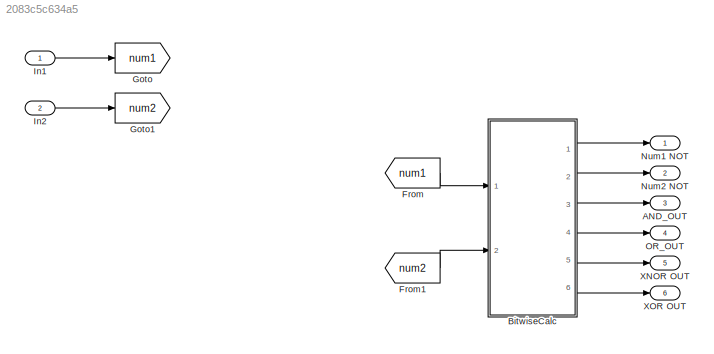
MODEL slx_2083c5c634a5
KIND model
CONFIG AbsTol = auto
CONFIG EnableMultiTasking = off
CONFIG FixedStep = auto
CONFIG MaxStep = auto
CONFIG MinStep = auto
CONFIG RelTol = 1e-3
CONFIG SampleTimeConstraint = Unconstrained
CONFIG SolverName = VariableStepAuto
CONFIG StartTime = 0.0
CONFIG StopTime = 10.0
BLOCK [Outport] AND_OUT
  Port = 3
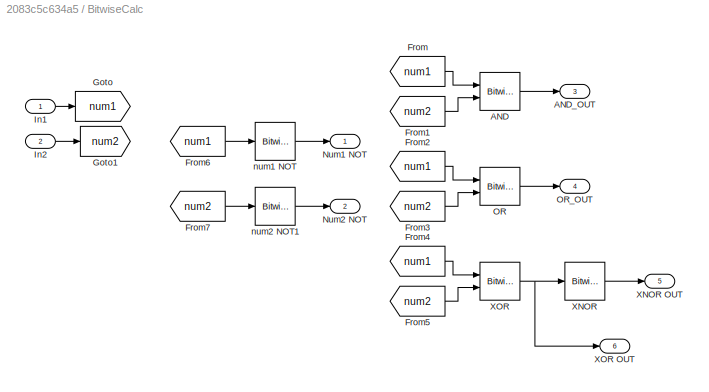
BLOCK [SubSystem] BitwiseCalc
  Ports = [2, 6]
  RequestExecContextInheritance = off
BLOCK [Reference] BitwiseCalc/AND  REF=simulink/Logic and Bit
Operations/Bitwise
Operator
  Ports = [2, 1]
  SourceBlock = simulink/Logic and Bit\nOperations/Bitwise\nOperator
  SourceProductBaseCode = SL
  SourceType = Bitwise Operator
BLOCK [Outport] BitwiseCalc/AND_OUT
  Port = 3
BLOCK [From] BitwiseCalc/From
  GotoTag = num1
BLOCK [From] BitwiseCalc/From1
  GotoTag = num2
BLOCK [From] BitwiseCalc/From2
  GotoTag = num1
BLOCK [From] BitwiseCalc/From3
  GotoTag = num2
BLOCK [From] BitwiseCalc/From4
  GotoTag = num1
BLOCK [From] BitwiseCalc/From5
  GotoTag = num2
BLOCK [From] BitwiseCalc/From6
  GotoTag = num1
BLOCK [From] BitwiseCalc/From7
  GotoTag = num2
BLOCK [Goto] BitwiseCalc/Goto
  GotoTag = num1
BLOCK [Goto] BitwiseCalc/Goto1
  GotoTag = num2
BLOCK [Inport] BitwiseCalc/In1
  OutDataTypeStr = uint32
BLOCK [Inport] BitwiseCalc/In2
  OutDataTypeStr = uint32
  Port = 2
BLOCK [Outport] BitwiseCalc/Num1 NOT
BLOCK [Outport] BitwiseCalc/Num2 NOT
  Port = 2
BLOCK [Reference] BitwiseCalc/OR  REF=simulink/Logic and Bit
Operations/Bitwise
Operator
  Ports = [2, 1]
  SourceBlock = simulink/Logic and Bit\nOperations/Bitwise\nOperator
  SourceProductBaseCode = SL
  SourceType = Bitwise Operator
BLOCK [Outport] BitwiseCalc/OR_OUT
  Port = 4
BLOCK [Reference] BitwiseCalc/XNOR  REF=simulink/Logic and Bit
Operations/Bitwise
Operator
  Ports = [1, 1]
  SourceBlock = simulink/Logic and Bit\nOperations/Bitwise\nOperator
  SourceProductBaseCode = SL
  SourceType = Bitwise Operator
BLOCK [Outport] BitwiseCalc/XNOR OUT
  Port = 5
BLOCK [Reference] BitwiseCalc/XOR  REF=simulink/Logic and Bit
Operations/Bitwise
Operator
  Ports = [2, 1]
  SourceBlock = simulink/Logic and Bit\nOperations/Bitwise\nOperator
  SourceProductBaseCode = SL
  SourceType = Bitwise Operator
BLOCK [Outport] BitwiseCalc/XOR OUT
  Port = 6
BLOCK [Reference] BitwiseCalc/num1 NOT  REF=simulink/Logic and Bit
Operations/Bitwise
Operator
  Ports = [1, 1]
  SourceBlock = simulink/Logic and Bit\nOperations/Bitwise\nOperator
  SourceProductBaseCode = SL
  SourceType = Bitwise Operator
BLOCK [Reference] BitwiseCalc/num2 NOT1  REF=simulink/Logic and Bit
Operations/Bitwise
Operator
  Ports = [1, 1]
  SourceBlock = simulink/Logic and Bit\nOperations/Bitwise\nOperator
  SourceProductBaseCode = SL
  SourceType = Bitwise Operator
BLOCK [From] From
  GotoTag = num1
BLOCK [From] From1
  GotoTag = num2
BLOCK [Goto] Goto
  GotoTag = num1
BLOCK [Goto] Goto1
  GotoTag = num2
BLOCK [Inport] In1
  OutDataTypeStr = uint32
BLOCK [Inport] In2
  OutDataTypeStr = uint32
  Port = 2
BLOCK [Outport] Num1 NOT
BLOCK [Outport] Num2 NOT
  Port = 2
BLOCK [Outport] OR_OUT
  Port = 4
BLOCK [Outport] XNOR OUT
  Port = 5
BLOCK [Outport] XOR OUT
  Port = 6
LINE BitwiseCalc/AND:1 -> BitwiseCalc/AND_OUT:1
LINE BitwiseCalc/From1:1 -> BitwiseCalc/AND:2
LINE BitwiseCalc/From2:1 -> BitwiseCalc/OR:1
LINE BitwiseCalc/From3:1 -> BitwiseCalc/OR:2
LINE BitwiseCalc/From4:1 -> BitwiseCalc/XOR:1
LINE BitwiseCalc/From5:1 -> BitwiseCalc/XOR:2
LINE BitwiseCalc/From6:1 -> BitwiseCalc/num1 NOT:1
LINE BitwiseCalc/From7:1 -> BitwiseCalc/num2 NOT1:1
LINE BitwiseCalc/From:1 -> BitwiseCalc/AND:1
LINE BitwiseCalc/In1:1 -> BitwiseCalc/Goto:1
LINE BitwiseCalc/In2:1 -> BitwiseCalc/Goto1:1
LINE BitwiseCalc/OR:1 -> BitwiseCalc/OR_OUT:1
LINE BitwiseCalc/XNOR:1 -> BitwiseCalc/XNOR OUT:1
NET BitwiseCalc/XOR:1 -> BitwiseCalc/XNOR:1, BitwiseCalc/XOR OUT:1
LINE BitwiseCalc/num1 NOT:1 -> BitwiseCalc/Num1 NOT:1
LINE BitwiseCalc/num2 NOT1:1 -> BitwiseCalc/Num2 NOT:1
LINE BitwiseCalc:1 -> Num1 NOT:1
LINE BitwiseCalc:2 -> Num2 NOT:1
LINE BitwiseCalc:3 -> AND_OUT:1
LINE BitwiseCalc:4 -> OR_OUT:1
LINE BitwiseCalc:5 -> XNOR OUT:1
LINE BitwiseCalc:6 -> XOR OUT:1
LINE From1:1 -> BitwiseCalc:2
LINE From:1 -> BitwiseCalc:1
LINE In1:1 -> Goto:1
LINE In2:1 -> Goto1:1
note: NET lines group one-source signal fan-out (src -> all destinations, sorted); 1:1 wires keep LINE
